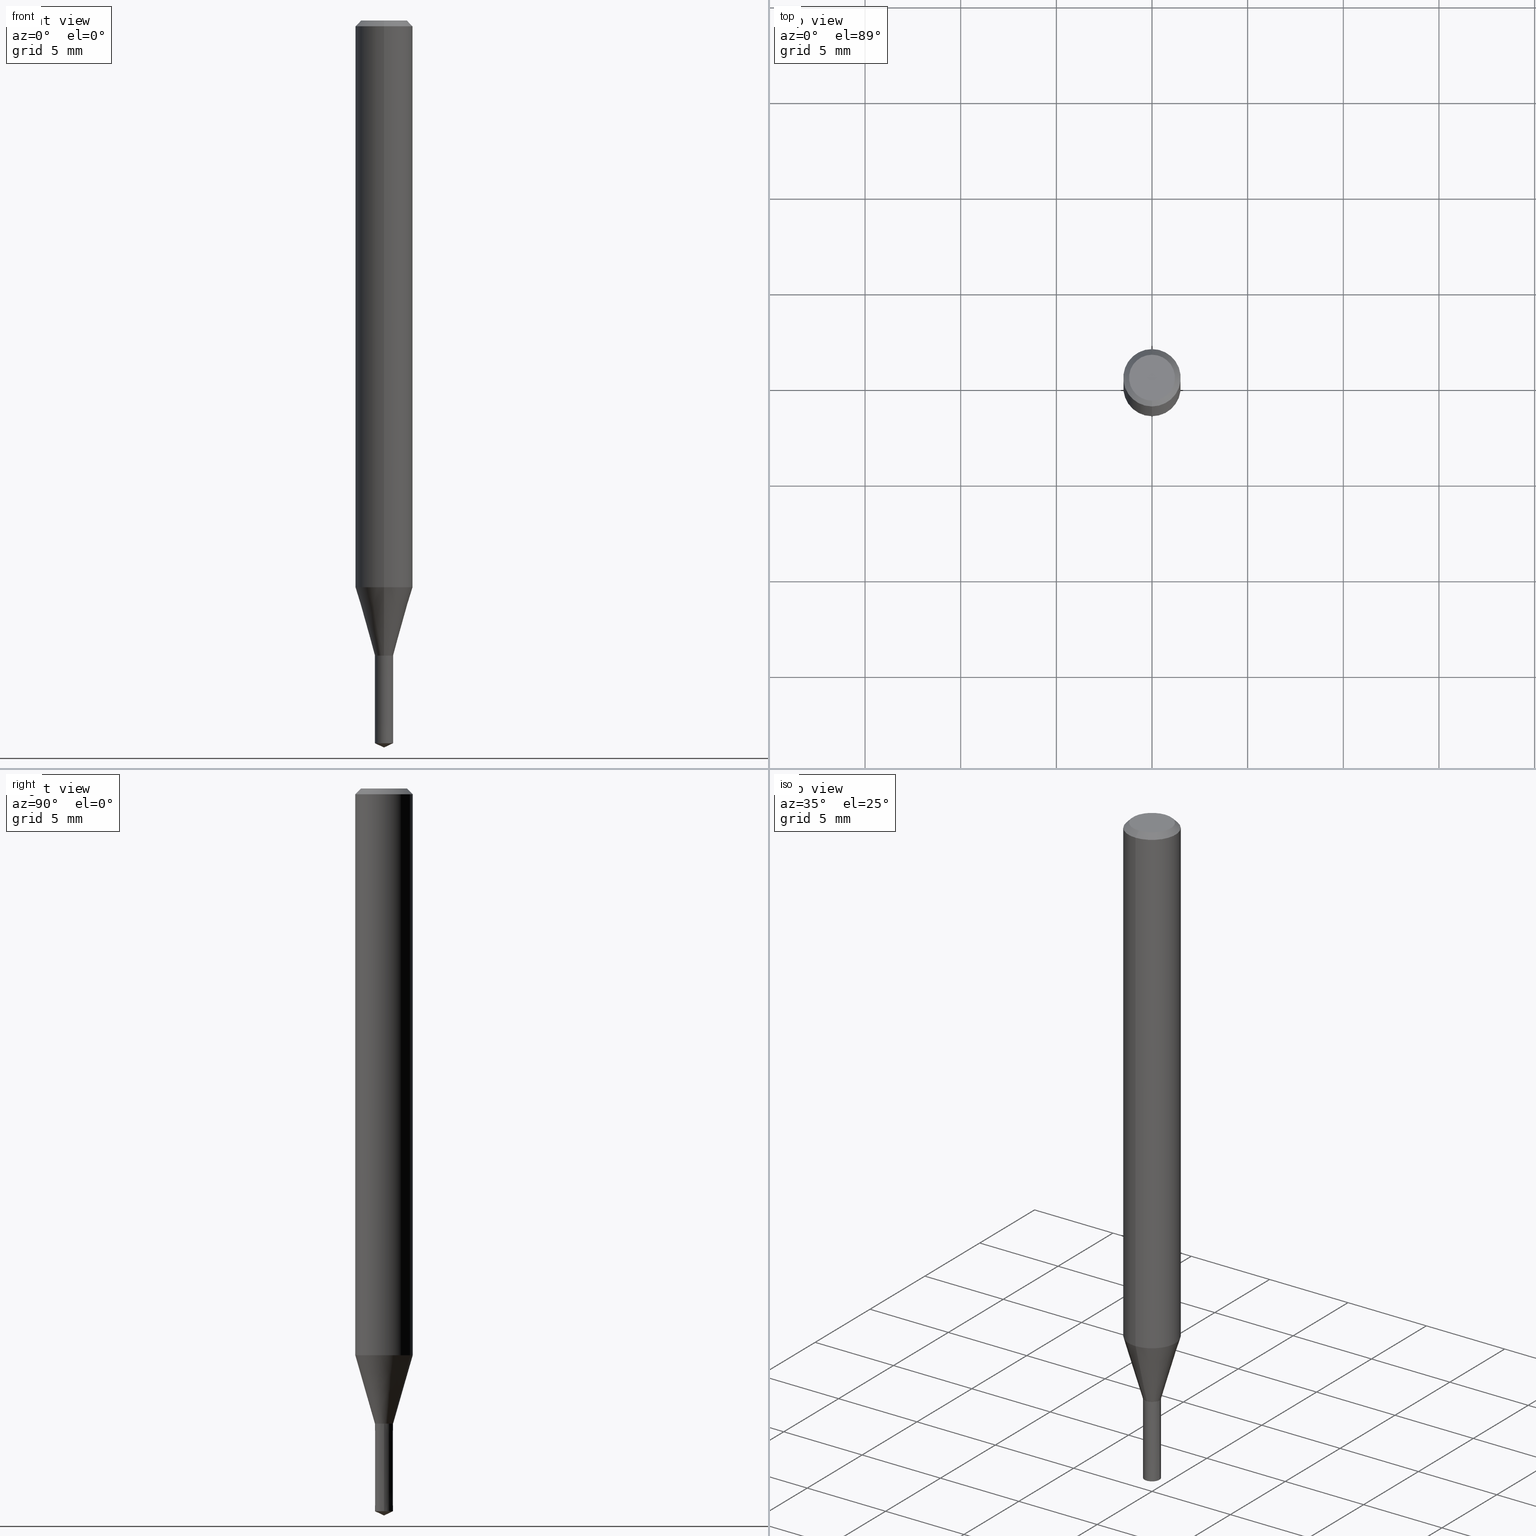
[diagram: canonical four-view strip — front | top / right | iso, engineering-drawing reading convention]
A machine part, canonical four-view strip (front | top / right | iso — engineering-drawing reading convention). The complete STEP part file that produces these views, byte-faithful:
ISO-10303-21;
HEADER;
FILE_DESCRIPTION(('no description'),'unknown implementation level');
FILE_NAME('UTDSX2095-048-Huellk.stp','  ',('CIMSOURCE GmbH'),('CADClick - KiM GmbH - www.kimweb.de'),'unknown preprocess','ACIS','unknown authorization');
FILE_SCHEMA(('automotive_design'));
ENDSEC;
DATA;
#1=MECHANICAL_DESIGN_GEOMETRIC_PRESENTATION_REPRESENTATION(' ',(#14,#15,#16,#17,#18,#19,#20,#21,#22,#23,#24,#25,#26,#27,#28,#29,#30,#31,#32,#33,#34,#35,#36,#37,#38,#39,#40,#41,#42,#43,#44,#45,#46,#47,#48,#49,#50,#51,#52,#53,#54,#55,#56,#57,#58,#59,#60,#61,#62,#63,#64,#65,#66,#67,#68,#69,#70,#71),#10);
#2=PRODUCT_DEFINITION_CONTEXT('',#72,'design');
#3=APPLICATION_PROTOCOL_DEFINITION('INTERNATIONAL STANDARD','automotive_design',1994,#72);
#4=PRODUCT_CATEGORY_RELATIONSHIP('NONE','NONE',#73,#74);
#5=SHAPE_DEFINITION_REPRESENTATION(#75,#76);
#6=PRODUCT_DEFINITION_CONTEXT('',#77,'design');
#7=APPLICATION_PROTOCOL_DEFINITION('INTERNATIONAL STANDARD','automotive_design',1994,#77);
#8=PRODUCT_CATEGORY_RELATIONSHIP('NONE','NONE',#78,#79);
#9=SHAPE_DEFINITION_REPRESENTATION(#80,#81);
#10= (GEOMETRIC_REPRESENTATION_CONTEXT(3)GLOBAL_UNCERTAINTY_ASSIGNED_CONTEXT((#84))GLOBAL_UNIT_ASSIGNED_CONTEXT((#86,#87,#88))REPRESENTATION_CONTEXT('NONE','WORKSPACE'));
#14=STYLED_ITEM('',(#90),#91);
#15=STYLED_ITEM('',(#92),#93);
#16=STYLED_ITEM('',(#94),#95);
#17=STYLED_ITEM('',(#96),#97);
#18=STYLED_ITEM('',(#98),#99);
#19=STYLED_ITEM('',(#100),#101);
#20=STYLED_ITEM('',(#102),#103);
#21=STYLED_ITEM('',(#104),#105);
#22=STYLED_ITEM('',(#106),#107);
#23=STYLED_ITEM('',(#108),#109);
#24=STYLED_ITEM('',(#110),#111);
#25=STYLED_ITEM('',(#112),#113);
#26=STYLED_ITEM('',(#114),#115);
#27=STYLED_ITEM('',(#116),#117);
#28=STYLED_ITEM('',(#118),#119);
#29=STYLED_ITEM('',(#120),#121);
#30=STYLED_ITEM('',(#122),#123);
#31=STYLED_ITEM('',(#124),#125);
#32=STYLED_ITEM('',(#126),#127);
#33=STYLED_ITEM('',(#128),#129);
#34=STYLED_ITEM('',(#130),#131);
#35=STYLED_ITEM('',(#132),#133);
#36=STYLED_ITEM('',(#134),#135);
#37=STYLED_ITEM('',(#136),#137);
#38=STYLED_ITEM('',(#138),#139);
#39=STYLED_ITEM('',(#140),#141);
#40=STYLED_ITEM('',(#142),#143);
#41=STYLED_ITEM('',(#144),#145);
#42=STYLED_ITEM('',(#146),#147);
#43=STYLED_ITEM('',(#148),#149);
#44=STYLED_ITEM('',(#150),#151);
#45=STYLED_ITEM('',(#152),#153);
#46=STYLED_ITEM('',(#154),#155);
#47=STYLED_ITEM('',(#156),#157);
#48=STYLED_ITEM('',(#158),#159);
#49=STYLED_ITEM('',(#160),#161);
#50=STYLED_ITEM('',(#162),#163);
#51=STYLED_ITEM('',(#164),#165);
#52=STYLED_ITEM('',(#166),#167);
#53=STYLED_ITEM('',(#168),#169);
#54=STYLED_ITEM('',(#170),#171);
#55=STYLED_ITEM('',(#172),#173);
#56=STYLED_ITEM('',(#174),#175);
#57=STYLED_ITEM('',(#176),#177);
#58=STYLED_ITEM('',(#178),#179);
#59=STYLED_ITEM('',(#180),#181);
#60=STYLED_ITEM('',(#182),#183);
#61=STYLED_ITEM('',(#184),#185);
#62=STYLED_ITEM('',(#186),#187);
#63=STYLED_ITEM('',(#188),#189);
#64=STYLED_ITEM('',(#190),#191);
#65=STYLED_ITEM('',(#192),#193);
#66=STYLED_ITEM('',(#194),#195);
#67=STYLED_ITEM('',(#196),#197);
#68=STYLED_ITEM('',(#198),#199);
#69=STYLED_ITEM('',(#200),#201);
#70=STYLED_ITEM('',(#202),#203);
#71=STYLED_ITEM('',(#204),#205);
#72=APPLICATION_CONTEXT(' ');
#73=PRODUCT_CATEGORY('part','NONE');
#74=PRODUCT_RELATED_PRODUCT_CATEGORY('detail',' ',(#206));
#75=PRODUCT_DEFINITION_SHAPE('NONE','NONE',#207);
#76=ADVANCED_BREP_SHAPE_REPRESENTATION('1',(#161,#208),#10);
#77=APPLICATION_CONTEXT(' ');
#78=PRODUCT_CATEGORY('part','NONE');
#79=PRODUCT_RELATED_PRODUCT_CATEGORY('detail',' ',(#209));
#80=PRODUCT_DEFINITION_SHAPE('NONE','NONE',#210);
#81=ADVANCED_BREP_SHAPE_REPRESENTATION('2',(#187,#211),#10);
#84=UNCERTAINTY_MEASURE_WITH_UNIT(LENGTH_MEASURE(1.0E-006),#86,'','');
#86= (CONVERSION_BASED_UNIT('MILLIMETRE',#214)LENGTH_UNIT()NAMED_UNIT(#217));
#87= (NAMED_UNIT(#219)PLANE_ANGLE_UNIT()SI_UNIT($,.RADIAN.));
#88= (NAMED_UNIT(#219)SOLID_ANGLE_UNIT()SI_UNIT($,.STERADIAN.));
#90=PRESENTATION_STYLE_ASSIGNMENT((#225));
#91=EDGE_CURVE('',#193,#97,#226,.T.);
#92=PRESENTATION_STYLE_ASSIGNMENT((#227));
#93=EDGE_CURVE('',#189,#139,#228,.T.);
#94=PRESENTATION_STYLE_ASSIGNMENT((#229));
#95=EDGE_CURVE('',#169,#145,#230,.T.);
#96=PRESENTATION_STYLE_ASSIGNMENT((#231));
#97=VERTEX_POINT('',#232);
#98=PRESENTATION_STYLE_ASSIGNMENT((#233));
#99=ADVANCED_FACE('',(#234),#235,.T.);
#100=PRESENTATION_STYLE_ASSIGNMENT((#236));
#101=ADVANCED_FACE('',(#237),#238,.T.);
#102=PRESENTATION_STYLE_ASSIGNMENT((#239));
#103=EDGE_CURVE('',#163,#169,#240,.T.);
#104=PRESENTATION_STYLE_ASSIGNMENT((#241));
#105=ADVANCED_FACE('',(#242),#243,.T.);
#106=PRESENTATION_STYLE_ASSIGNMENT((#244));
#107=EDGE_CURVE('',#111,#123,#245,.T.);
#108=PRESENTATION_STYLE_ASSIGNMENT((#246));
#109=EDGE_CURVE('',#205,#193,#247,.T.);
#110=PRESENTATION_STYLE_ASSIGNMENT((#248));
#111=VERTEX_POINT('',#249);
#112=PRESENTATION_STYLE_ASSIGNMENT((#250));
#113=EDGE_CURVE('',#203,#153,#251,.T.);
#114=PRESENTATION_STYLE_ASSIGNMENT((#252));
#115=EDGE_CURVE('',#159,#149,#253,.T.);
#116=PRESENTATION_STYLE_ASSIGNMENT((#254));
#117=EDGE_CURVE('',#153,#147,#255,.T.);
#118=PRESENTATION_STYLE_ASSIGNMENT((#256));
#119=EDGE_CURVE('',#159,#203,#257,.T.);
#120=PRESENTATION_STYLE_ASSIGNMENT((#258));
#121=ADVANCED_FACE('',(#259),#260,.T.);
#122=PRESENTATION_STYLE_ASSIGNMENT((#261));
#123=VERTEX_POINT('',#262);
#124=PRESENTATION_STYLE_ASSIGNMENT((#263));
#125=ADVANCED_FACE('',(#264),#265,.T.);
#126=PRESENTATION_STYLE_ASSIGNMENT((#266));
#127=EDGE_CURVE('',#139,#163,#267,.T.);
#128=PRESENTATION_STYLE_ASSIGNMENT((#268));
#129=ADVANCED_FACE('',(#269),#270,.T.);
#130=PRESENTATION_STYLE_ASSIGNMENT((#271));
#131=EDGE_CURVE('',#123,#205,#272,.T.);
#132=PRESENTATION_STYLE_ASSIGNMENT((#273));
#133=ADVANCED_FACE('',(#274),#275,.T.);
#134=PRESENTATION_STYLE_ASSIGNMENT((#276));
#135=EDGE_CURVE('',#205,#147,#277,.T.);
#136=PRESENTATION_STYLE_ASSIGNMENT((#278));
#137=ADVANCED_FACE('',(#279),#280,.T.);
#138=PRESENTATION_STYLE_ASSIGNMENT((#281));
#139=VERTEX_POINT('',#282);
#140=PRESENTATION_STYLE_ASSIGNMENT((#283));
#141=ADVANCED_FACE('',(#284),#285,.T.);
#142=PRESENTATION_STYLE_ASSIGNMENT((#286));
#143=ADVANCED_FACE('',(#287),#288,.T.);
#144=PRESENTATION_STYLE_ASSIGNMENT((#289));
#145=VERTEX_POINT('',#290);
#146=PRESENTATION_STYLE_ASSIGNMENT((#291));
#147=VERTEX_POINT('',#292);
#148=PRESENTATION_STYLE_ASSIGNMENT((#293));
#149=VERTEX_POINT('',#294);
#150=PRESENTATION_STYLE_ASSIGNMENT((#295));
#151=EDGE_CURVE('',#193,#153,#296,.T.);
#152=PRESENTATION_STYLE_ASSIGNMENT((#297));
#153=VERTEX_POINT('',#298);
#154=PRESENTATION_STYLE_ASSIGNMENT((#299));
#155=ADVANCED_FACE('',(#300),#301,.T.);
#156=PRESENTATION_STYLE_ASSIGNMENT((#302));
#157=ADVANCED_FACE('',(#303),#304,.T.);
#158=PRESENTATION_STYLE_ASSIGNMENT((#305));
#159=VERTEX_POINT('',#306);
#160=PRESENTATION_STYLE_ASSIGNMENT((#307));
#161=MANIFOLD_SOLID_BREP('1',#308);
#162=PRESENTATION_STYLE_ASSIGNMENT((#309));
#163=VERTEX_POINT('',#310);
#164=PRESENTATION_STYLE_ASSIGNMENT((#311));
#165=EDGE_CURVE('',#203,#97,#312,.T.);
#166=PRESENTATION_STYLE_ASSIGNMENT((#313));
#167=EDGE_CURVE('',#153,#193,#314,.T.);
#168=PRESENTATION_STYLE_ASSIGNMENT((#315));
#169=VERTEX_POINT('',#316);
#170=PRESENTATION_STYLE_ASSIGNMENT((#317));
#171=EDGE_CURVE('',#149,#159,#318,.T.);
#172=PRESENTATION_STYLE_ASSIGNMENT((#319));
#173=EDGE_CURVE('',#189,#145,#320,.T.);
#174=PRESENTATION_STYLE_ASSIGNMENT((#321));
#175=EDGE_CURVE('',#97,#149,#322,.T.);
#176=PRESENTATION_STYLE_ASSIGNMENT((#323));
#177=EDGE_CURVE('',#139,#169,#324,.T.);
#178=PRESENTATION_STYLE_ASSIGNMENT((#325));
#179=EDGE_CURVE('',#147,#205,#326,.T.);
#180=PRESENTATION_STYLE_ASSIGNMENT((#327));
#181=EDGE_CURVE('',#145,#189,#328,.T.);
#182=PRESENTATION_STYLE_ASSIGNMENT((#329));
#183=ADVANCED_FACE('',(#330),#331,.T.);
#184=PRESENTATION_STYLE_ASSIGNMENT((#332));
#185=ADVANCED_FACE('',(#333),#334,.T.);
#186=PRESENTATION_STYLE_ASSIGNMENT((#335));
#187=MANIFOLD_SOLID_BREP('2',#336);
#188=PRESENTATION_STYLE_ASSIGNMENT((#337));
#189=VERTEX_POINT('',#338);
#190=PRESENTATION_STYLE_ASSIGNMENT((#339));
#191=EDGE_CURVE('',#147,#111,#340,.T.);
#192=PRESENTATION_STYLE_ASSIGNMENT((#341));
#193=VERTEX_POINT('',#342);
#194=PRESENTATION_STYLE_ASSIGNMENT((#343));
#195=EDGE_CURVE('',#97,#203,#344,.T.);
#196=PRESENTATION_STYLE_ASSIGNMENT((#345));
#197=ADVANCED_FACE('',(#346),#347,.T.);
#198=PRESENTATION_STYLE_ASSIGNMENT((#348));
#199=EDGE_CURVE('',#169,#139,#349,.T.);
#200=PRESENTATION_STYLE_ASSIGNMENT((#350));
#201=EDGE_CURVE('',#123,#111,#351,.T.);
#202=PRESENTATION_STYLE_ASSIGNMENT((#352));
#203=VERTEX_POINT('',#353);
#204=PRESENTATION_STYLE_ASSIGNMENT((#354));
#205=VERTEX_POINT('',#355);
#206=PRODUCT('1','1','PART-1-DESC',(#356));
#207=PRODUCT_DEFINITION('NONE','NONE',#357,#2);
#208=AXIS2_PLACEMENT_3D('',#358,#359,#360);
#209=PRODUCT('2','2','PART-2-DESC',(#361));
#210=PRODUCT_DEFINITION('NONE','NONE',#362,#6);
#211=AXIS2_PLACEMENT_3D('',#363,#364,#365);
#214=LENGTH_MEASURE_WITH_UNIT(LENGTH_MEASURE(1.0),#366);
#217=DIMENSIONAL_EXPONENTS(1.0,0.0,0.0,0.0,0.0,0.0,0.0);
#219=DIMENSIONAL_EXPONENTS(0.0,0.0,0.0,0.0,0.0,0.0,0.0);
#225=CURVE_STYLE('',#367,POSITIVE_LENGTH_MEASURE(1.0E-006),#368);
#226=LINE('',#369,#370);
#227=CURVE_STYLE('',#371,POSITIVE_LENGTH_MEASURE(1.0E-006),#372);
#228=LINE('',#373,#374);
#229=CURVE_STYLE('',#375,POSITIVE_LENGTH_MEASURE(1.0E-006),#376);
#230=LINE('',#377,#378);
#231=POINT_STYLE(' ',#379,POSITIVE_LENGTH_MEASURE(1.0E-006),#380);
#232=CARTESIAN_POINT('',(1.83690953073357E-016,-1.5,-0.300000000000001));
#233=SURFACE_STYLE_USAGE(.BOTH.,#381);
#234=FACE_OUTER_BOUND('',#382,.T.);
#235=CONICAL_SURFACE('',#383,0.2375,1.13446400968697);
#236=SURFACE_STYLE_USAGE(.BOTH.,#384);
#237=FACE_OUTER_BOUND('',#385,.T.);
#238=CONICAL_SURFACE('',#386,1.35,0.785398163397447);
#239=CURVE_STYLE('',#387,POSITIVE_LENGTH_MEASURE(1.0E-006),#388);
#240=LINE('',#389,#390);
#241=SURFACE_STYLE_USAGE(.BOTH.,#391);
#242=FACE_OUTER_BOUND('',#392,.T.);
#243=PLANE('',#393);
#244=CURVE_STYLE('',#394,POSITIVE_LENGTH_MEASURE(1.0E-006),#395);
#245=CIRCLE('',#396,0.4755);
#246=CURVE_STYLE('',#397,POSITIVE_LENGTH_MEASURE(1.0E-006),#398);
#247=LINE('',#399,#400);
#248=POINT_STYLE(' ',#401,POSITIVE_LENGTH_MEASURE(1.0E-006),#402);
#249=CARTESIAN_POINT('',(0.0,0.4755,-33.2));
#250=CURVE_STYLE('',#403,POSITIVE_LENGTH_MEASURE(1.0E-006),#404);
#251=LINE('',#405,#406);
#252=CURVE_STYLE('',#407,POSITIVE_LENGTH_MEASURE(1.0E-006),#408);
#253=CIRCLE('',#409,1.2);
#254=CURVE_STYLE('',#410,POSITIVE_LENGTH_MEASURE(1.0E-006),#411);
#255=LINE('',#412,#413);
#256=CURVE_STYLE('',#414,POSITIVE_LENGTH_MEASURE(1.0E-006),#415);
#257=LINE('',#416,#417);
#258=SURFACE_STYLE_USAGE(.BOTH.,#418);
#259=FACE_OUTER_BOUND('',#419,.T.);
#260=CONICAL_SURFACE('',#420,0.47525,0.523598775598408);
#261=POINT_STYLE(' ',#421,POSITIVE_LENGTH_MEASURE(1.0E-006),#422);
#262=CARTESIAN_POINT('',(5.8230032124254E-017,-0.4755,-33.2));
#263=SURFACE_STYLE_USAGE(.BOTH.,#423);
#264=FACE_OUTER_BOUND('',#424,.T.);
#265=CONICAL_SURFACE('',#425,0.9875,0.27928721316379);
#266=CURVE_STYLE('',#426,POSITIVE_LENGTH_MEASURE(1.0E-006),#427);
#267=LINE('',#428,#429);
#268=SURFACE_STYLE_USAGE(.BOTH.,#430);
#269=FACE_OUTER_BOUND('',#431,.T.);
#270=CONICAL_SURFACE('',#432,1.35,0.785398163397447);
#271=CURVE_STYLE('',#433,POSITIVE_LENGTH_MEASURE(1.0E-006),#434);
#272=LINE('',#435,#436);
#273=SURFACE_STYLE_USAGE(.BOTH.,#437);
#274=FACE_OUTER_BOUND('',#438,.T.);
#275=PLANE('',#439);
#276=CURVE_STYLE('',#440,POSITIVE_LENGTH_MEASURE(1.0E-006),#441);
#277=CIRCLE('',#442,0.475);
#278=SURFACE_STYLE_USAGE(.BOTH.,#443);
#279=FACE_OUTER_BOUND('',#444,.T.);
#280=CONICAL_SURFACE('',#445,0.47525,0.523598775598408);
#281=POINT_STYLE(' ',#446,POSITIVE_LENGTH_MEASURE(1.0E-006),#447);
#282=CARTESIAN_POINT('',(-0.475,0.0,-37.77850386));
#283=SURFACE_STYLE_USAGE(.BOTH.,#448);
#284=FACE_OUTER_BOUND('',#449,.T.);
#285=CONICAL_SURFACE('',#450,0.9875,0.27928721316379);
#286=SURFACE_STYLE_USAGE(.BOTH.,#451);
#287=FACE_OUTER_BOUND('',#452,.T.);
#288=CYLINDRICAL_SURFACE('',#453,1.5);
#289=POINT_STYLE(' ',#454,POSITIVE_LENGTH_MEASURE(1.0E-006),#455);
#290=CARTESIAN_POINT('',(0.476,5.82912624419452E-017,-33.2));
#291=POINT_STYLE(' ',#456,POSITIVE_LENGTH_MEASURE(1.0E-006),#457);
#292=CARTESIAN_POINT('',(0.0,0.475,-33.1991339745962));
#293=POINT_STYLE(' ',#458,POSITIVE_LENGTH_MEASURE(1.0E-006),#459);
#294=CARTESIAN_POINT('',(1.46952762458685E-016,-1.2,0.0));
#295=CURVE_STYLE('',#460,POSITIVE_LENGTH_MEASURE(1.0E-006),#461);
#296=CIRCLE('',#462,1.5);
#297=POINT_STYLE(' ',#463,POSITIVE_LENGTH_MEASURE(1.0E-006),#464);
#298=CARTESIAN_POINT('',(0.0,1.5,-29.625));
#299=SURFACE_STYLE_USAGE(.BOTH.,#465);
#300=FACE_OUTER_BOUND('',#466,.T.);
#301=CYLINDRICAL_SURFACE('',#467,1.5);
#302=SURFACE_STYLE_USAGE(.BOTH.,#468);
#303=FACE_OUTER_BOUND('',#469,.T.);
#304=PLANE('',#470);
#305=POINT_STYLE(' ',#471,POSITIVE_LENGTH_MEASURE(1.0E-006),#472);
#306=CARTESIAN_POINT('',(0.0,1.2,0.0));
#307=SURFACE_STYLE_USAGE(.BOTH.,#473);
#308=CLOSED_SHELL('',(#137,#141,#143,#101,#133,#129,#155,#125,#121,#157));
#309=POINT_STYLE(' ',#474,POSITIVE_LENGTH_MEASURE(1.0E-006),#475);
#310=CARTESIAN_POINT('',(0.0,0.0,-38.0));
#311=CURVE_STYLE('',#476,POSITIVE_LENGTH_MEASURE(1.0E-006),#477);
#312=CIRCLE('',#478,1.5);
#313=CURVE_STYLE('',#479,POSITIVE_LENGTH_MEASURE(1.0E-006),#480);
#314=CIRCLE('',#481,1.5);
#315=POINT_STYLE(' ',#482,POSITIVE_LENGTH_MEASURE(1.0E-006),#483);
#316=CARTESIAN_POINT('',(0.475,5.81688018065629E-017,-37.77850386));
#317=CURVE_STYLE('',#484,POSITIVE_LENGTH_MEASURE(1.0E-006),#485);
#318=CIRCLE('',#486,1.2);
#319=CURVE_STYLE('',#487,POSITIVE_LENGTH_MEASURE(1.0E-006),#488);
#320=CIRCLE('',#489,0.476);
#321=CURVE_STYLE('',#490,POSITIVE_LENGTH_MEASURE(1.0E-006),#491);
#322=LINE('',#492,#493);
#323=CURVE_STYLE('',#494,POSITIVE_LENGTH_MEASURE(1.0E-006),#495);
#324=CIRCLE('',#496,0.475);
#325=CURVE_STYLE('',#497,POSITIVE_LENGTH_MEASURE(1.0E-006),#498);
#326=CIRCLE('',#499,0.475);
#327=CURVE_STYLE('',#500,POSITIVE_LENGTH_MEASURE(1.0E-006),#501);
#328=CIRCLE('',#502,0.476);
#329=SURFACE_STYLE_USAGE(.BOTH.,#503);
#330=FACE_OUTER_BOUND('',#504,.T.);
#331=CONICAL_SURFACE('',#505,0.2375,1.13446400968697);
#332=SURFACE_STYLE_USAGE(.BOTH.,#506);
#333=FACE_OUTER_BOUND('',#507,.T.);
#334=CONICAL_SURFACE('',#508,0.4755,0.000218411956105403);
#335=SURFACE_STYLE_USAGE(.BOTH.,#509);
#336=CLOSED_SHELL('',(#183,#185,#105,#197,#99));
#337=POINT_STYLE(' ',#510,POSITIVE_LENGTH_MEASURE(1.0E-006),#511);
#338=CARTESIAN_POINT('',(-0.476,0.0,-33.2));
#339=CURVE_STYLE('',#512,POSITIVE_LENGTH_MEASURE(1.0E-006),#513);
#340=LINE('',#514,#515);
#341=POINT_STYLE(' ',#516,POSITIVE_LENGTH_MEASURE(1.0E-006),#517);
#342=CARTESIAN_POINT('',(1.83690953073357E-016,-1.5,-29.625));
#343=CURVE_STYLE('',#518,POSITIVE_LENGTH_MEASURE(1.0E-006),#519);
#344=CIRCLE('',#520,1.5);
#345=SURFACE_STYLE_USAGE(.BOTH.,#521);
#346=FACE_OUTER_BOUND('',#522,.T.);
#347=CONICAL_SURFACE('',#523,0.4755,0.000218411956105403);
#348=CURVE_STYLE('',#524,POSITIVE_LENGTH_MEASURE(1.0E-006),#525);
#349=CIRCLE('',#526,0.475);
#350=CURVE_STYLE('',#527,POSITIVE_LENGTH_MEASURE(1.0E-006),#528);
#351=CIRCLE('',#529,0.4755);
#352=POINT_STYLE(' ',#530,POSITIVE_LENGTH_MEASURE(1.0E-006),#531);
#353=CARTESIAN_POINT('',(0.0,1.5,-0.300000000000001));
#354=POINT_STYLE(' ',#532,POSITIVE_LENGTH_MEASURE(1.0E-006),#533);
#355=CARTESIAN_POINT('',(5.81688018065629E-017,-0.475,-33.1991339745962));
#356=PRODUCT_CONTEXT('',#72,'mechanical');
#357=PRODUCT_DEFINITION_FORMATION_WITH_SPECIFIED_SOURCE(' ','NONE',#206,.NOT_KNOWN.);
#358=CARTESIAN_POINT('',(0.0,0.0,0.0));
#359=DIRECTION('',(0.0,0.0,1.0));
#360=DIRECTION('',(1.0,0.0,0.0));
#361=PRODUCT_CONTEXT('',#77,'mechanical');
#362=PRODUCT_DEFINITION_FORMATION_WITH_SPECIFIED_SOURCE(' ','NONE',#209,.NOT_KNOWN.);
#363=CARTESIAN_POINT('',(0.0,0.0,0.0));
#364=DIRECTION('',(0.0,0.0,1.0));
#365=DIRECTION('',(1.0,0.0,0.0));
#366= (NAMED_UNIT(#217)LENGTH_UNIT()SI_UNIT(.MILLI.,.METRE.));
#367=DRAUGHTING_PRE_DEFINED_CURVE_FONT('continuous');
#368=COLOUR_RGB('',0.498039215803146,0.498039215803146,0.498039215803146);
#369=CARTESIAN_POINT('',(1.83690953073357E-016,-1.5,-14.9625));
#370=VECTOR('',#535,1.0);
#371=DRAUGHTING_PRE_DEFINED_CURVE_FONT('continuous');
#372=COLOUR_RGB('',0.800000011920929,0.800000011920929,0.800000011920929);
#373=CARTESIAN_POINT('',(-0.4755,-5.8230032124254E-017,-35.48925193));
#374=VECTOR('',#536,1.0);
#375=DRAUGHTING_PRE_DEFINED_CURVE_FONT('continuous');
#376=COLOUR_RGB('',0.800000011920929,0.800000011920929,0.800000011920929);
#377=CARTESIAN_POINT('',(0.4755,5.8230032124254E-017,-35.48925193));
#378=VECTOR('',#537,1.0);
#379=PRE_DEFINED_MARKER('');
#380=COLOUR_RGB('',0.498039215803146,0.498039215803146,0.498039215803146);
#381=SURFACE_SIDE_STYLE('',(#538));
#382=EDGE_LOOP('',(#539,#540,#541));
#383=AXIS2_PLACEMENT_3D('',#542,#543,#544);
#384=SURFACE_SIDE_STYLE('',(#545));
#385=EDGE_LOOP('',(#546,#547,#548,#549));
#386=AXIS2_PLACEMENT_3D('',#550,#551,#552);
#387=DRAUGHTING_PRE_DEFINED_CURVE_FONT('continuous');
#388=COLOUR_RGB('',0.800000011920929,0.800000011920929,0.800000011920929);
#389=CARTESIAN_POINT('',(0.2375,2.90844009032815E-017,-37.88925193));
#390=VECTOR('',#553,1.0);
#391=SURFACE_SIDE_STYLE('',(#554));
#392=EDGE_LOOP('',(#555,#556));
#393=AXIS2_PLACEMENT_3D('',#557,#558,#559);
#394=DRAUGHTING_PRE_DEFINED_CURVE_FONT('continuous');
#395=COLOUR_RGB('',0.498039215803146,0.498039215803146,0.498039215803146);
#396=AXIS2_PLACEMENT_3D('',#560,#561,#562);
#397=DRAUGHTING_PRE_DEFINED_CURVE_FONT('continuous');
#398=COLOUR_RGB('',0.498039215803146,0.498039215803146,0.498039215803146);
#399=CARTESIAN_POINT('',(1.2092987743996E-016,-0.9875,-31.4120669872981));
#400=VECTOR('',#563,1.0);
#401=PRE_DEFINED_MARKER('');
#402=COLOUR_RGB('',0.498039215803146,0.498039215803146,0.498039215803146);
#403=DRAUGHTING_PRE_DEFINED_CURVE_FONT('continuous');
#404=COLOUR_RGB('',0.498039215803146,0.498039215803146,0.498039215803146);
#405=CARTESIAN_POINT('',(-1.83690953073357E-016,1.5,-14.9625));
#406=VECTOR('',#564,1.0);
#407=DRAUGHTING_PRE_DEFINED_CURVE_FONT('continuous');
#408=COLOUR_RGB('',0.498039215803146,0.498039215803146,0.498039215803146);
#409=AXIS2_PLACEMENT_3D('',#565,#566,#567);
#410=DRAUGHTING_PRE_DEFINED_CURVE_FONT('continuous');
#411=COLOUR_RGB('',0.498039215803146,0.498039215803146,0.498039215803146);
#412=CARTESIAN_POINT('',(-1.2092987743996E-016,0.9875,-31.4120669872981));
#413=VECTOR('',#568,1.0);
#414=DRAUGHTING_PRE_DEFINED_CURVE_FONT('continuous');
#415=COLOUR_RGB('',0.498039215803146,0.498039215803146,0.498039215803146);
#416=CARTESIAN_POINT('',(-1.65321857766021E-016,1.35,-0.150000000000002));
#417=VECTOR('',#569,1.0);
#418=SURFACE_SIDE_STYLE('',(#570));
#419=EDGE_LOOP('',(#571,#572,#573,#574));
#420=AXIS2_PLACEMENT_3D('',#575,#576,#577);
#421=PRE_DEFINED_MARKER('');
#422=COLOUR_RGB('',0.498039215803146,0.498039215803146,0.498039215803146);
#423=SURFACE_SIDE_STYLE('',(#578));
#424=EDGE_LOOP('',(#579,#580,#581,#582));
#425=AXIS2_PLACEMENT_3D('',#583,#584,#585);
#426=DRAUGHTING_PRE_DEFINED_CURVE_FONT('continuous');
#427=COLOUR_RGB('',0.800000011920929,0.800000011920929,0.800000011920929);
#428=CARTESIAN_POINT('',(-0.2375,-2.90844009032815E-017,-37.88925193));
#429=VECTOR('',#586,1.0);
#430=SURFACE_SIDE_STYLE('',(#587));
#431=EDGE_LOOP('',(#588,#589,#590,#591));
#432=AXIS2_PLACEMENT_3D('',#592,#593,#594);
#433=DRAUGHTING_PRE_DEFINED_CURVE_FONT('continuous');
#434=COLOUR_RGB('',0.498039215803146,0.498039215803146,0.498039215803146);
#435=CARTESIAN_POINT('',(5.81994169654085E-017,-0.47525,-33.1995669872981));
#436=VECTOR('',#595,1.0);
#437=SURFACE_SIDE_STYLE('',(#596));
#438=EDGE_LOOP('',(#597,#598));
#439=AXIS2_PLACEMENT_3D('',#599,#600,#601);
#440=DRAUGHTING_PRE_DEFINED_CURVE_FONT('continuous');
#441=COLOUR_RGB('',0.498039215803146,0.498039215803146,0.498039215803146);
#442=AXIS2_PLACEMENT_3D('',#602,#603,#604);
#443=SURFACE_SIDE_STYLE('',(#605));
#444=EDGE_LOOP('',(#606,#607,#608,#609));
#445=AXIS2_PLACEMENT_3D('',#610,#611,#612);
#446=PRE_DEFINED_MARKER('');
#447=COLOUR_RGB('',0.800000011920929,0.800000011920929,0.800000011920929);
#448=SURFACE_SIDE_STYLE('',(#613));
#449=EDGE_LOOP('',(#614,#615,#616,#617));
#450=AXIS2_PLACEMENT_3D('',#618,#619,#620);
#451=SURFACE_SIDE_STYLE('',(#621));
#452=EDGE_LOOP('',(#622,#623,#624,#625));
#453=AXIS2_PLACEMENT_3D('',#626,#627,#628);
#454=PRE_DEFINED_MARKER('');
#455=COLOUR_RGB('',0.800000011920929,0.800000011920929,0.800000011920929);
#456=PRE_DEFINED_MARKER('');
#457=COLOUR_RGB('',0.498039215803146,0.498039215803146,0.498039215803146);
#458=PRE_DEFINED_MARKER('');
#459=COLOUR_RGB('',0.498039215803146,0.498039215803146,0.498039215803146);
#460=DRAUGHTING_PRE_DEFINED_CURVE_FONT('continuous');
#461=COLOUR_RGB('',0.498039215803146,0.498039215803146,0.498039215803146);
#462=AXIS2_PLACEMENT_3D('',#629,#630,#631);
#463=PRE_DEFINED_MARKER('');
#464=COLOUR_RGB('',0.498039215803146,0.498039215803146,0.498039215803146);
#465=SURFACE_SIDE_STYLE('',(#632));
#466=EDGE_LOOP('',(#633,#634,#635,#636));
#467=AXIS2_PLACEMENT_3D('',#637,#638,#639);
#468=SURFACE_SIDE_STYLE('',(#640));
#469=EDGE_LOOP('',(#641,#642));
#470=AXIS2_PLACEMENT_3D('',#643,#644,#645);
#471=PRE_DEFINED_MARKER('');
#472=COLOUR_RGB('',0.498039215803146,0.498039215803146,0.498039215803146);
#473=SURFACE_SIDE_STYLE('',(#646));
#474=PRE_DEFINED_MARKER('');
#475=COLOUR_RGB('',0.800000011920929,0.800000011920929,0.800000011920929);
#476=DRAUGHTING_PRE_DEFINED_CURVE_FONT('continuous');
#477=COLOUR_RGB('',0.498039215803146,0.498039215803146,0.498039215803146);
#478=AXIS2_PLACEMENT_3D('',#647,#648,#649);
#479=DRAUGHTING_PRE_DEFINED_CURVE_FONT('continuous');
#480=COLOUR_RGB('',0.498039215803146,0.498039215803146,0.498039215803146);
#481=AXIS2_PLACEMENT_3D('',#650,#651,#652);
#482=PRE_DEFINED_MARKER('');
#483=COLOUR_RGB('',0.800000011920929,0.800000011920929,0.800000011920929);
#484=DRAUGHTING_PRE_DEFINED_CURVE_FONT('continuous');
#485=COLOUR_RGB('',0.498039215803146,0.498039215803146,0.498039215803146);
#486=AXIS2_PLACEMENT_3D('',#653,#654,#655);
#487=DRAUGHTING_PRE_DEFINED_CURVE_FONT('continuous');
#488=COLOUR_RGB('',0.800000011920929,0.800000011920929,0.800000011920929);
#489=AXIS2_PLACEMENT_3D('',#656,#657,#658);
#490=DRAUGHTING_PRE_DEFINED_CURVE_FONT('continuous');
#491=COLOUR_RGB('',0.498039215803146,0.498039215803146,0.498039215803146);
#492=CARTESIAN_POINT('',(1.65321857766021E-016,-1.35,-0.150000000000002));
#493=VECTOR('',#659,1.0);
#494=DRAUGHTING_PRE_DEFINED_CURVE_FONT('continuous');
#495=COLOUR_RGB('',0.800000011920929,0.800000011920929,0.800000011920929);
#496=AXIS2_PLACEMENT_3D('',#660,#661,#662);
#497=DRAUGHTING_PRE_DEFINED_CURVE_FONT('continuous');
#498=COLOUR_RGB('',0.498039215803146,0.498039215803146,0.498039215803146);
#499=AXIS2_PLACEMENT_3D('',#663,#664,#665);
#500=DRAUGHTING_PRE_DEFINED_CURVE_FONT('continuous');
#501=COLOUR_RGB('',0.800000011920929,0.800000011920929,0.800000011920929);
#502=AXIS2_PLACEMENT_3D('',#666,#667,#668);
#503=SURFACE_SIDE_STYLE('',(#669));
#504=EDGE_LOOP('',(#670,#671,#672));
#505=AXIS2_PLACEMENT_3D('',#673,#674,#675);
#506=SURFACE_SIDE_STYLE('',(#676));
#507=EDGE_LOOP('',(#677,#678,#679,#680));
#508=AXIS2_PLACEMENT_3D('',#681,#682,#683);
#509=SURFACE_SIDE_STYLE('',(#684));
#510=PRE_DEFINED_MARKER('');
#511=COLOUR_RGB('',0.800000011920929,0.800000011920929,0.800000011920929);
#512=DRAUGHTING_PRE_DEFINED_CURVE_FONT('continuous');
#513=COLOUR_RGB('',0.498039215803146,0.498039215803146,0.498039215803146);
#514=CARTESIAN_POINT('',(-5.81994169654085E-017,0.47525,-33.1995669872981));
#515=VECTOR('',#685,1.0);
#516=PRE_DEFINED_MARKER('');
#517=COLOUR_RGB('',0.498039215803146,0.498039215803146,0.498039215803146);
#518=DRAUGHTING_PRE_DEFINED_CURVE_FONT('continuous');
#519=COLOUR_RGB('',0.498039215803146,0.498039215803146,0.498039215803146);
#520=AXIS2_PLACEMENT_3D('',#686,#687,#688);
#521=SURFACE_SIDE_STYLE('',(#689));
#522=EDGE_LOOP('',(#690,#691,#692,#693));
#523=AXIS2_PLACEMENT_3D('',#694,#695,#696);
#524=DRAUGHTING_PRE_DEFINED_CURVE_FONT('continuous');
#525=COLOUR_RGB('',0.800000011920929,0.800000011920929,0.800000011920929);
#526=AXIS2_PLACEMENT_3D('',#697,#698,#699);
#527=DRAUGHTING_PRE_DEFINED_CURVE_FONT('continuous');
#528=COLOUR_RGB('',0.498039215803146,0.498039215803146,0.498039215803146);
#529=AXIS2_PLACEMENT_3D('',#700,#701,#702);
#530=PRE_DEFINED_MARKER('');
#531=COLOUR_RGB('',0.498039215803146,0.498039215803146,0.498039215803146);
#532=PRE_DEFINED_MARKER('');
#533=COLOUR_RGB('',0.498039215803146,0.498039215803146,0.498039215803146);
#535=DIRECTION('',(-0.0,-0.0,1.0));
#536=DIRECTION('',(0.000218411954368891,2.67468667070907E-020,-0.999999976148109));
#537=DIRECTION('',(0.000218411954368891,2.67468667070907E-020,0.999999976148109));
#538=SURFACE_STYLE_FILL_AREA(#703);
#539=ORIENTED_EDGE('',*,*,#103,.T.);
#540=ORIENTED_EDGE('',*,*,#199,.T.);
#541=ORIENTED_EDGE('',*,*,#127,.T.);
#542=CARTESIAN_POINT('',(0.0,0.0,-37.88925193));
#543=DIRECTION('',(-0.0,-0.0,1.0));
#544=DIRECTION('',(-1.0,0.0,0.0));
#545=SURFACE_STYLE_FILL_AREA(#704);
#546=ORIENTED_EDGE('',*,*,#119,.F.);
#547=ORIENTED_EDGE('',*,*,#115,.T.);
#548=ORIENTED_EDGE('',*,*,#175,.F.);
#549=ORIENTED_EDGE('',*,*,#165,.F.);
#550=CARTESIAN_POINT('',(0.0,0.0,-0.150000000000002));
#551=DIRECTION('',(0.0,-0.0,-1.0));
#552=DIRECTION('',(0.0,1.0,0.0));
#553=DIRECTION('',(0.906307785299964,1.10987027239702E-016,0.422618265465034));
#554=SURFACE_STYLE_FILL_AREA(#705);
#555=ORIENTED_EDGE('',*,*,#173,.F.);
#556=ORIENTED_EDGE('',*,*,#181,.F.);
#557=CARTESIAN_POINT('',(-0.238,0.0,-33.2));
#558=DIRECTION('',(0.0,0.0,1.0));
#559=DIRECTION('',(1.0,0.0,0.0));
#560=CARTESIAN_POINT('',(0.0,0.0,-33.2));
#561=DIRECTION('',(0.0,0.0,-1.0));
#562=DIRECTION('',(0.0,1.0,0.0));
#563=DIRECTION('',(3.37587908014451E-017,-0.275670550753501,0.961252176823159));
#564=DIRECTION('',(0.0,0.0,-1.0));
#565=CARTESIAN_POINT('',(0.0,0.0,0.0));
#566=DIRECTION('',(0.0,0.0,-1.0));
#567=DIRECTION('',(0.0,1.0,0.0));
#568=DIRECTION('',(3.37587908014451E-017,-0.275670550753501,-0.961252176823159));
#569=DIRECTION('',(-8.65927457071934E-017,0.707106781186546,-0.707106781186549));
#570=SURFACE_STYLE_FILL_AREA(#706);
#571=ORIENTED_EDGE('',*,*,#191,.T.);
#572=ORIENTED_EDGE('',*,*,#201,.F.);
#573=ORIENTED_EDGE('',*,*,#131,.T.);
#574=ORIENTED_EDGE('',*,*,#135,.T.);
#575=CARTESIAN_POINT('',(0.0,0.0,-33.1995669872981));
#576=DIRECTION('',(0.0,-0.0,-1.0));
#577=DIRECTION('',(0.0,1.0,0.0));
#578=SURFACE_STYLE_FILL_AREA(#707);
#579=ORIENTED_EDGE('',*,*,#117,.T.);
#580=ORIENTED_EDGE('',*,*,#135,.F.);
#581=ORIENTED_EDGE('',*,*,#109,.T.);
#582=ORIENTED_EDGE('',*,*,#151,.T.);
#583=CARTESIAN_POINT('',(0.0,0.0,-31.4120669872981));
#584=DIRECTION('',(-0.0,-0.0,1.0));
#585=DIRECTION('',(0.0,1.0,0.0));
#586=DIRECTION('',(0.906307785299964,1.10987027239702E-016,-0.422618265465034));
#587=SURFACE_STYLE_FILL_AREA(#708);
#588=ORIENTED_EDGE('',*,*,#119,.T.);
#589=ORIENTED_EDGE('',*,*,#195,.F.);
#590=ORIENTED_EDGE('',*,*,#175,.T.);
#591=ORIENTED_EDGE('',*,*,#171,.T.);
#592=CARTESIAN_POINT('',(0.0,0.0,-0.150000000000002));
#593=DIRECTION('',(0.0,-0.0,-1.0));
#594=DIRECTION('',(0.0,1.0,0.0));
#595=DIRECTION('',(-6.123031769113E-017,0.500000000000091,0.866025403784386));
#596=SURFACE_STYLE_FILL_AREA(#709);
#597=ORIENTED_EDGE('',*,*,#115,.F.);
#598=ORIENTED_EDGE('',*,*,#171,.F.);
#599=CARTESIAN_POINT('',(0.0,0.6,0.0));
#600=DIRECTION('',(-0.0,0.0,1.0));
#601=DIRECTION('',(0.0,-1.0,0.0));
#602=CARTESIAN_POINT('',(0.0,0.0,-33.1991339745962));
#603=DIRECTION('',(0.0,0.0,-1.0));
#604=DIRECTION('',(0.0,1.0,0.0));
#605=SURFACE_STYLE_FILL_AREA(#710);
#606=ORIENTED_EDGE('',*,*,#191,.F.);
#607=ORIENTED_EDGE('',*,*,#179,.T.);
#608=ORIENTED_EDGE('',*,*,#131,.F.);
#609=ORIENTED_EDGE('',*,*,#107,.F.);
#610=CARTESIAN_POINT('',(0.0,0.0,-33.1995669872981));
#611=DIRECTION('',(0.0,-0.0,-1.0));
#612=DIRECTION('',(0.0,1.0,0.0));
#613=SURFACE_STYLE_FILL_AREA(#711);
#614=ORIENTED_EDGE('',*,*,#117,.F.);
#615=ORIENTED_EDGE('',*,*,#167,.T.);
#616=ORIENTED_EDGE('',*,*,#109,.F.);
#617=ORIENTED_EDGE('',*,*,#179,.F.);
#618=CARTESIAN_POINT('',(0.0,0.0,-31.4120669872981));
#619=DIRECTION('',(-0.0,-0.0,1.0));
#620=DIRECTION('',(0.0,1.0,0.0));
#621=SURFACE_STYLE_FILL_AREA(#712);
#622=ORIENTED_EDGE('',*,*,#113,.F.);
#623=ORIENTED_EDGE('',*,*,#165,.T.);
#624=ORIENTED_EDGE('',*,*,#91,.F.);
#625=ORIENTED_EDGE('',*,*,#167,.F.);
#626=CARTESIAN_POINT('',(0.0,0.0,-14.9625));
#627=DIRECTION('',(-0.0,-0.0,1.0));
#628=DIRECTION('',(0.0,1.0,0.0));
#629=CARTESIAN_POINT('',(0.0,0.0,-29.625));
#630=DIRECTION('',(0.0,0.0,-1.0));
#631=DIRECTION('',(0.0,1.0,0.0));
#632=SURFACE_STYLE_FILL_AREA(#713);
#633=ORIENTED_EDGE('',*,*,#113,.T.);
#634=ORIENTED_EDGE('',*,*,#151,.F.);
#635=ORIENTED_EDGE('',*,*,#91,.T.);
#636=ORIENTED_EDGE('',*,*,#195,.T.);
#637=CARTESIAN_POINT('',(0.0,0.0,-14.9625));
#638=DIRECTION('',(-0.0,-0.0,1.0));
#639=DIRECTION('',(0.0,1.0,0.0));
#640=SURFACE_STYLE_FILL_AREA(#714);
#641=ORIENTED_EDGE('',*,*,#107,.T.);
#642=ORIENTED_EDGE('',*,*,#201,.T.);
#643=CARTESIAN_POINT('',(0.0,0.23775,-33.2));
#644=DIRECTION('',(0.0,0.0,-1.0));
#645=DIRECTION('',(0.0,1.0,0.0));
#646=SURFACE_STYLE_FILL_AREA(#715);
#647=CARTESIAN_POINT('',(0.0,0.0,-0.300000000000001));
#648=DIRECTION('',(0.0,0.0,-1.0));
#649=DIRECTION('',(0.0,1.0,0.0));
#650=CARTESIAN_POINT('',(0.0,0.0,-29.625));
#651=DIRECTION('',(0.0,0.0,-1.0));
#652=DIRECTION('',(0.0,1.0,0.0));
#653=CARTESIAN_POINT('',(0.0,0.0,0.0));
#654=DIRECTION('',(0.0,0.0,-1.0));
#655=DIRECTION('',(0.0,1.0,0.0));
#656=CARTESIAN_POINT('',(0.0,0.0,-33.2));
#657=DIRECTION('',(0.0,0.0,-1.0));
#658=DIRECTION('',(-1.0,0.0,0.0));
#659=DIRECTION('',(-8.65927457071934E-017,0.707106781186546,0.707106781186549));
#660=CARTESIAN_POINT('',(0.0,0.0,-37.77850386));
#661=DIRECTION('',(0.0,0.0,-1.0));
#662=DIRECTION('',(-1.0,0.0,0.0));
#663=CARTESIAN_POINT('',(0.0,0.0,-33.1991339745962));
#664=DIRECTION('',(0.0,0.0,-1.0));
#665=DIRECTION('',(0.0,1.0,0.0));
#666=CARTESIAN_POINT('',(0.0,0.0,-33.2));
#667=DIRECTION('',(0.0,0.0,-1.0));
#668=DIRECTION('',(-1.0,0.0,0.0));
#669=SURFACE_STYLE_FILL_AREA(#716);
#670=ORIENTED_EDGE('',*,*,#103,.F.);
#671=ORIENTED_EDGE('',*,*,#127,.F.);
#672=ORIENTED_EDGE('',*,*,#177,.T.);
#673=CARTESIAN_POINT('',(0.0,0.0,-37.88925193));
#674=DIRECTION('',(-0.0,-0.0,1.0));
#675=DIRECTION('',(-1.0,0.0,0.0));
#676=SURFACE_STYLE_FILL_AREA(#717);
#677=ORIENTED_EDGE('',*,*,#93,.F.);
#678=ORIENTED_EDGE('',*,*,#173,.T.);
#679=ORIENTED_EDGE('',*,*,#95,.F.);
#680=ORIENTED_EDGE('',*,*,#177,.F.);
#681=CARTESIAN_POINT('',(0.0,0.0,-35.48925193));
#682=DIRECTION('',(-0.0,-0.0,1.0));
#683=DIRECTION('',(-1.0,0.0,0.0));
#684=SURFACE_STYLE_FILL_AREA(#718);
#685=DIRECTION('',(-6.12303176911301E-017,0.500000000000091,-0.866025403784386));
#686=CARTESIAN_POINT('',(0.0,0.0,-0.300000000000001));
#687=DIRECTION('',(0.0,0.0,-1.0));
#688=DIRECTION('',(0.0,1.0,0.0));
#689=SURFACE_STYLE_FILL_AREA(#719);
#690=ORIENTED_EDGE('',*,*,#93,.T.);
#691=ORIENTED_EDGE('',*,*,#199,.F.);
#692=ORIENTED_EDGE('',*,*,#95,.T.);
#693=ORIENTED_EDGE('',*,*,#181,.T.);
#694=CARTESIAN_POINT('',(0.0,0.0,-35.48925193));
#695=DIRECTION('',(-0.0,-0.0,1.0));
#696=DIRECTION('',(-1.0,0.0,0.0));
#697=CARTESIAN_POINT('',(0.0,0.0,-37.77850386));
#698=DIRECTION('',(0.0,0.0,-1.0));
#699=DIRECTION('',(-1.0,0.0,0.0));
#700=CARTESIAN_POINT('',(0.0,0.0,-33.2));
#701=DIRECTION('',(0.0,0.0,-1.0));
#702=DIRECTION('',(0.0,1.0,0.0));
#703=FILL_AREA_STYLE('',(#720));
#704=FILL_AREA_STYLE('',(#721));
#705=FILL_AREA_STYLE('',(#722));
#706=FILL_AREA_STYLE('',(#723));
#707=FILL_AREA_STYLE('',(#724));
#708=FILL_AREA_STYLE('',(#725));
#709=FILL_AREA_STYLE('',(#726));
#710=FILL_AREA_STYLE('',(#727));
#711=FILL_AREA_STYLE('',(#728));
#712=FILL_AREA_STYLE('',(#729));
#713=FILL_AREA_STYLE('',(#730));
#714=FILL_AREA_STYLE('',(#731));
#715=FILL_AREA_STYLE('',(#732));
#716=FILL_AREA_STYLE('',(#733));
#717=FILL_AREA_STYLE('',(#734));
#718=FILL_AREA_STYLE('',(#735));
#719=FILL_AREA_STYLE('',(#736));
#720=FILL_AREA_STYLE_COLOUR('',#737);
#721=FILL_AREA_STYLE_COLOUR('',#738);
#722=FILL_AREA_STYLE_COLOUR('',#739);
#723=FILL_AREA_STYLE_COLOUR('',#740);
#724=FILL_AREA_STYLE_COLOUR('',#741);
#725=FILL_AREA_STYLE_COLOUR('',#742);
#726=FILL_AREA_STYLE_COLOUR('',#743);
#727=FILL_AREA_STYLE_COLOUR('',#744);
#728=FILL_AREA_STYLE_COLOUR('',#745);
#729=FILL_AREA_STYLE_COLOUR('',#746);
#730=FILL_AREA_STYLE_COLOUR('',#747);
#731=FILL_AREA_STYLE_COLOUR('',#748);
#732=FILL_AREA_STYLE_COLOUR('',#749);
#733=FILL_AREA_STYLE_COLOUR('',#750);
#734=FILL_AREA_STYLE_COLOUR('',#751);
#735=FILL_AREA_STYLE_COLOUR('',#752);
#736=FILL_AREA_STYLE_COLOUR('',#753);
#737=COLOUR_RGB('',0.800000011920929,0.800000011920929,0.800000011920929);
#738=COLOUR_RGB('',0.498039215803146,0.498039215803146,0.498039215803146);
#739=COLOUR_RGB('',0.800000011920929,0.800000011920929,0.800000011920929);
#740=COLOUR_RGB('',0.498039215803146,0.498039215803146,0.498039215803146);
#741=COLOUR_RGB('',0.498039215803146,0.498039215803146,0.498039215803146);
#742=COLOUR_RGB('',0.498039215803146,0.498039215803146,0.498039215803146);
#743=COLOUR_RGB('',0.498039215803146,0.498039215803146,0.498039215803146);
#744=COLOUR_RGB('',0.498039215803146,0.498039215803146,0.498039215803146);
#745=COLOUR_RGB('',0.498039215803146,0.498039215803146,0.498039215803146);
#746=COLOUR_RGB('',0.498039215803146,0.498039215803146,0.498039215803146);
#747=COLOUR_RGB('',0.498039215803146,0.498039215803146,0.498039215803146);
#748=COLOUR_RGB('',0.498039215803146,0.498039215803146,0.498039215803146);
#749=COLOUR_RGB('',0.498039215803146,0.498039215803146,0.498039215803146);
#750=COLOUR_RGB('',0.800000011920929,0.800000011920929,0.800000011920929);
#751=COLOUR_RGB('',0.800000011920929,0.800000011920929,0.800000011920929);
#752=COLOUR_RGB('',0.800000011920929,0.800000011920929,0.800000011920929);
#753=COLOUR_RGB('',0.800000011920929,0.800000011920929,0.800000011920929);
#754=AXIS2_PLACEMENT_3D('PCS',#755,#756,#757);
#755=CARTESIAN_POINT('',(0.0,0.0,0.0));
#756=DIRECTION('',(0.0,0.0,1.0));
#757=DIRECTION('',(1.0,0.0,0.0));
#758=AXIS2_PLACEMENT_3D('CIP',#759,#760,#761);
#759=CARTESIAN_POINT('',(0.0,0.0,-38.0));
#760=DIRECTION('',(0.0,0.0,1.0));
#761=DIRECTION('',(1.0,0.0,0.0));
#762=AXIS2_PLACEMENT_3D('CRP',#763,#764,#765);
#763=CARTESIAN_POINT('',(-0.475,0.0,-37.7785));
#764=DIRECTION('',(0.0,0.0,1.0));
#765=DIRECTION('',(1.0,0.0,0.0));
#766=AXIS2_PLACEMENT_3D('MCS',#767,#768,#769);
#767=CARTESIAN_POINT('',(0.0,0.0,-29.625));
#768=DIRECTION('',(0.0,0.0,1.0));
#769=DIRECTION('',(1.0,0.0,0.0));
#770=CONSTRUCTIVE_GEOMETRY_REPRESENTATION_RELATIONSHIP('coordinate systems',$,#76,#771);
#771=CONSTRUCTIVE_GEOMETRY_REPRESENTATION('coordinate systems',(#754,#758,#762,#766),#10);
ENDSEC;
END-ISO-10303-21;
